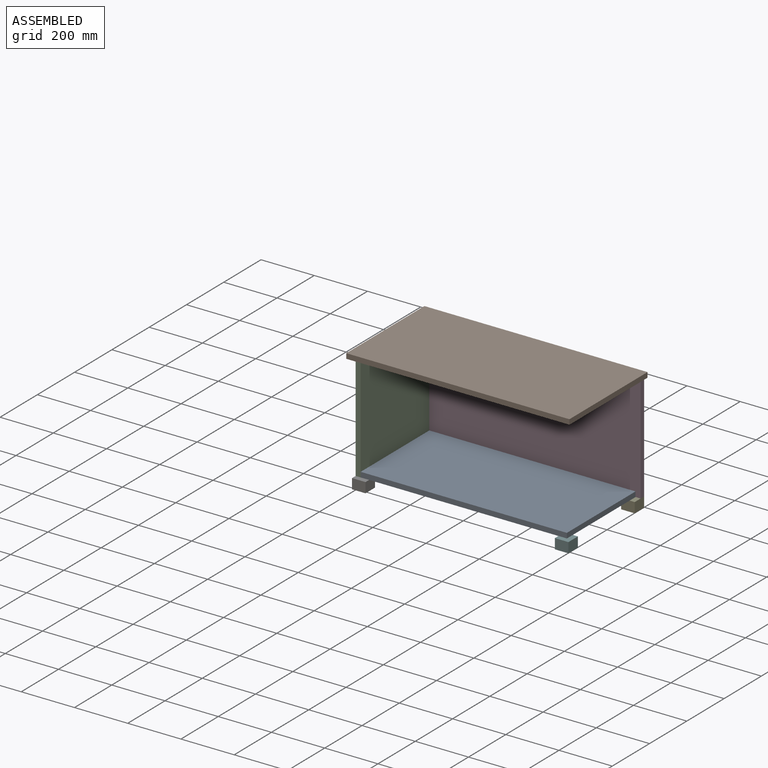
[diagram: assembled view]
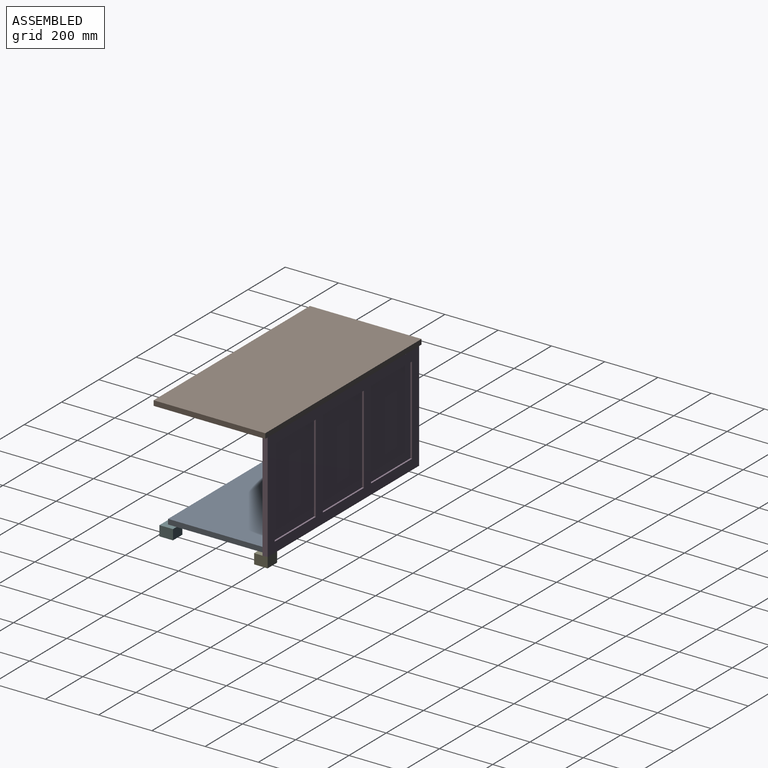
[diagram: assembled view, second angle]
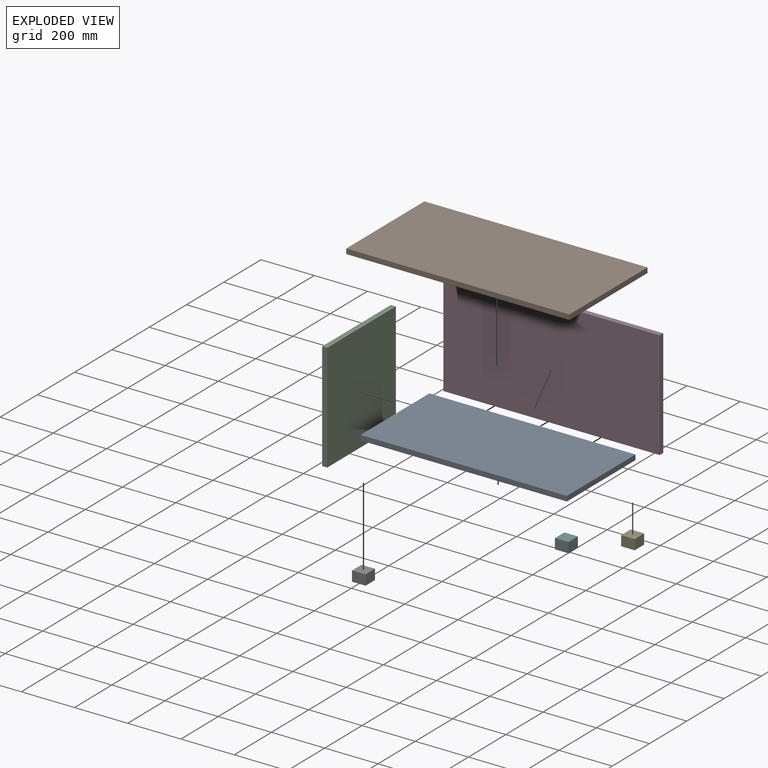
[diagram: exploded view]
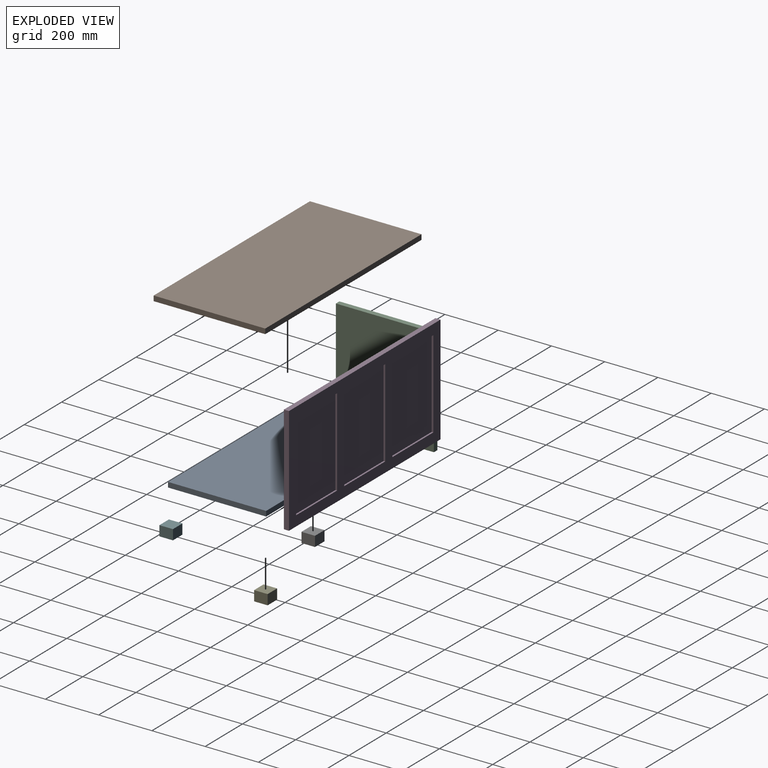
[diagram: exploded view, second angle]
FCSTD DOCUMENT  (FreeCAD 0.19R14555 (Git shallow))
Label: complete
License: All rights reserved
LicenseURL: http://en.wikipedia.org/wiki/All_rights_reserved
objects: Sketcher::SketchObject×9, PartDesign::Pad×9, PartDesign::Body×5, App::Link×5
note: 32 computed .brp shape members not serialized (recipe doc carries the construction recipe); baked Part::Feature solids carry a one-line shape summary decoded from their .brp

FEATURE [Sketcher::SketchObject] Sketch
  FullyConstrained = true
  MapMode = 5
  Support = -> [XY_Plane]
  sketch-geometry (8):
    g0: LineSegment StartX=-387.35 StartY=0 StartZ=0 EndX=387.35 EndY=-1e-15 EndZ=0
    g1: LineSegment StartX=387.35 StartY=-1e-15 StartZ=0 EndX=387.35 EndY=-368.3 EndZ=0
    g2: LineSegment StartX=387.35 StartY=-368.3 StartZ=0 EndX=-387.35 EndY=-368.3 EndZ=0
    g3: LineSegment StartX=-387.35 StartY=-368.3 StartZ=0 EndX=-387.35 EndY=0 EndZ=0
    g4: LineSegment StartX=-349.25 StartY=-38.1 StartZ=0 EndX=349.25 EndY=-38.1 EndZ=0
    g5: LineSegment StartX=349.25 StartY=-38.1 StartZ=0 EndX=349.25 EndY=-330.2 EndZ=0
    g6: LineSegment StartX=349.25 StartY=-330.2 StartZ=0 EndX=-349.25 EndY=-330.2 EndZ=0
    g7: LineSegment StartX=-349.25 StartY=-330.2 StartZ=0 EndX=-349.25 EndY=-38.1 EndZ=0
  constraints (23):
    c: Coincident(g0,g1)
    c: Coincident(g1,g2)
    c: Coincident(g2,g3)
    c: Coincident(g3,g0)
    c: Horizontal(g2)
    c: Vertical(g1)
    c: Vertical(g3)
    c: PointOnObject(g0,g-1)
    c: Symmetric(g0,g0,g-2)
    c: DistanceX(g0,g0) = 774.7
    c: DistanceY(g3,g3) = 368.3
    c: Coincident(g4,g5)
    c: Coincident(g5,g6)
    c: Coincident(g6,g7)
    c: Coincident(g7,g4)
    c: Horizontal(g4)
    c: Horizontal(g6)
    c: Vertical(g5)
    c: Vertical(g7)
    c: DistanceX(g4,g0) = 38.1
    c: DistanceY(g4,g0) = 38.1
    c: DistanceY(g1,g5) = 38.1
    c: DistanceX(g0,g4) = 38.1
FEATURE [PartDesign::Pad] Pad
  Direction = (1,1,1)
  Length = 19.05
  Length2 = 100.076
  Profile = -> Sketch
  Type = 0
FEATURE [Sketcher::SketchObject] Sketch001
  ExternalGeometry = -> [Pad]
  FullyConstrained = true
  MapMode = 5
  Placement = pos=(0,0,19.05) rot=(0,0,1;0rad)
  Support = -> [Pad]
  sketch-geometry (4):
    g0: LineSegment StartX=-349.25 StartY=-38.1 StartZ=0 EndX=349.25 EndY=-38.1 EndZ=0
    g1: LineSegment StartX=349.25 StartY=-38.1 StartZ=0 EndX=349.25 EndY=-330.2 EndZ=0
    g2: LineSegment StartX=349.25 StartY=-330.2 StartZ=0 EndX=-349.25 EndY=-330.2 EndZ=0
    g3: LineSegment StartX=-349.25 StartY=-330.2 StartZ=0 EndX=-349.25 EndY=-38.1 EndZ=0
  constraints (10):
    c: Coincident(g0,g1)
    c: Coincident(g1,g2)
    c: Coincident(g2,g3)
    c: Coincident(g3,g0)
    c: Horizontal(g0)
    c: Horizontal(g2)
    c: Vertical(g1)
    c: Vertical(g3)
    c: Coincident(g0,g-3)
    c: Coincident(g1,g-4)
FEATURE [PartDesign::Pad] Pad001
  BaseFeature = -> Pad
  Direction = (1,1,1)
  Length = 12.7
  Length2 = 100.076
  Profile = -> Sketch001
  Reversed = true
  Type = 0
FEATURE [PartDesign::Body] Body  label="bottom"
  Group = -> [Sketch,Pad,Sketch001,Pad001]
  Origin = -> Origin
  Tip = -> Pad001
FEATURE [Sketcher::SketchObject] Sketch002
  FullyConstrained = true
  MapMode = 5
  Placement = pos=(0,0,0) rot=(0.57735,0.57735,0.57735;2.0944rad)
  Support = -> [YZ_Plane001]
  sketch-geometry (8):
    g0: LineSegment StartX=-368.3 StartY=406.4 StartZ=0 EndX=0 EndY=406.4 EndZ=0
    g1: LineSegment StartX=0 StartY=406.4 StartZ=0 EndX=0 EndY=0 EndZ=0
    g2: LineSegment StartX=0 StartY=0 StartZ=0 EndX=-368.3 EndY=0 EndZ=0
    g3: LineSegment StartX=-368.3 StartY=0 StartZ=0 EndX=-368.3 EndY=406.4 EndZ=0
    g4: LineSegment StartX=-330.2 StartY=368.3 StartZ=0 EndX=-38.1 EndY=368.3 EndZ=0
    g5: LineSegment StartX=-38.1 StartY=368.3 StartZ=0 EndX=-38.1 EndY=38.1 EndZ=0
    g6: LineSegment StartX=-38.1 StartY=38.1 StartZ=0 EndX=-330.2 EndY=38.1 EndZ=0
    g7: LineSegment StartX=-330.2 StartY=38.1 StartZ=0 EndX=-330.2 EndY=368.3 EndZ=0
  constraints (23):
    c: Coincident(g0,g1)
    c: Coincident(g1,g2)
    c: Coincident(g2,g3)
    c: Coincident(g3,g0)
    c: Horizontal(g0)
    c: Horizontal(g2)
    c: Vertical(g1)
    c: Vertical(g3)
    c: Coincident(g1,g-1)
    c: DistanceX(g0,g0) = 368.3
    c: DistanceY(g1,g1) = 406.4
    c: Coincident(g4,g5)
    c: Coincident(g5,g6)
    c: Coincident(g6,g7)
    c: Coincident(g7,g4)
    c: Horizontal(g4)
    c: Horizontal(g6)
    c: Vertical(g5)
    c: Vertical(g7)
    c: DistanceX(g4,g0) = 38.1
    c: DistanceY(g1,g5) = 38.1
    c: DistanceX(g2,g6) = 38.1
    c: DistanceY(g4,g0) = 38.1
FEATURE [PartDesign::Pad] Pad002
  Direction = (1,1,1)
  Length = 19.05
  Length2 = 100.076
  Placement = pos=(0,0,0) rot=(0.57735,0.57735,0.57735;2.0944rad)
  Profile = -> Sketch002
  Type = 0
FEATURE [Sketcher::SketchObject] Sketch003
  ExternalGeometry = -> [Pad002]
  FullyConstrained = true
  MapMode = 5
  Placement = pos=(0,0,0) rot=(0.57735,0.57735,0.57735;2.0944rad)
  Support = -> [YZ_Plane001]
  sketch-geometry (4):
    g0: LineSegment StartX=-330.2 StartY=368.3 StartZ=0 EndX=-38.1 EndY=368.3 EndZ=0
    g1: LineSegment StartX=-38.1 StartY=368.3 StartZ=0 EndX=-38.1 EndY=38.1 EndZ=0
    g2: LineSegment StartX=-38.1 StartY=38.1 StartZ=0 EndX=-330.2 EndY=38.1 EndZ=0
    g3: LineSegment StartX=-330.2 StartY=38.1 StartZ=0 EndX=-330.2 EndY=368.3 EndZ=0
  constraints (10):
    c: Coincident(g0,g1)
    c: Coincident(g1,g2)
    c: Coincident(g2,g3)
    c: Coincident(g3,g0)
    c: Horizontal(g0)
    c: Horizontal(g2)
    c: Vertical(g1)
    c: Vertical(g3)
    c: Coincident(g0,g-3)
    c: Coincident(g1,g-4)
FEATURE [PartDesign::Pad] Pad003
  BaseFeature = -> Pad002
  Direction = (1,1,1)
  Length = 12.7
  Length2 = 100.076
  Placement = pos=(0,0,0) rot=(0.57735,0.57735,0.57735;2.0944rad)
  Profile = -> Sketch003
  Type = 0
FEATURE [PartDesign::Body] Body001  label="right"
  Group = -> [Sketch002,Pad002,Sketch003,Pad003]
  Origin = -> Origin001
  Placement = pos=(387.35,0,0) rot=(0,0,1;0rad)
  Tip = -> Pad003
FEATURE [App::Link] Link  label="left"
  LinkPlacement = pos=(-387.35,-368.3,0) rot=(0,0,1;3.14159rad)
  LinkedObject = -> Body001
  Placement = pos=(-387.35,-368.3,0) rot=(0,0,1;3.14159rad)
FEATURE [Sketcher::SketchObject] Sketch004
  FullyConstrained = true
  MapMode = 5
  Placement = pos=(0,0,0) rot=(1,0,0;1.5708rad)
  Support = -> [XZ_Plane002]
  sketch-geometry (16):
    g0: LineSegment StartX=-406.4 StartY=406.4 StartZ=0 EndX=406.4 EndY=406.4 EndZ=0
    g1: LineSegment StartX=406.4 StartY=406.4 StartZ=0 EndX=406.4 EndY=0 EndZ=0
    g2: LineSegment StartX=406.4 StartY=0 StartZ=0 EndX=-406.4 EndY=0 EndZ=0
    g3: LineSegment StartX=-406.4 StartY=0 StartZ=0 EndX=-406.4 EndY=406.4 EndZ=0
    g4: LineSegment StartX=-368.3 StartY=368.3 StartZ=0 EndX=-148.167 EndY=368.3 EndZ=0
    g5: LineSegment StartX=368.3 StartY=368.3 StartZ=0 EndX=368.3 EndY=38.1 EndZ=0
    g6: LineSegment StartX=368.3 StartY=38.1 StartZ=0 EndX=148.167 EndY=38.1 EndZ=0
    g7: LineSegment StartX=-368.3 StartY=38.1 StartZ=0 EndX=-368.3 EndY=368.3 EndZ=0
    g8: LineSegment StartX=148.167 StartY=368.3 StartZ=0 EndX=368.3 EndY=368.3 EndZ=0
    g9: LineSegment StartX=-148.167 StartY=38.1 StartZ=0 EndX=-368.3 EndY=38.1 EndZ=0
    g10: LineSegment StartX=-148.167 StartY=368.3 StartZ=0 EndX=-148.167 EndY=38.1 EndZ=0
    g11: LineSegment StartX=148.167 StartY=368.3 StartZ=0 EndX=148.167 EndY=38.1 EndZ=0
    g12: LineSegment StartX=-110.067 StartY=368.3 StartZ=0 EndX=110.067 EndY=368.3 EndZ=0
    g13: LineSegment StartX=110.067 StartY=368.3 StartZ=0 EndX=110.067 EndY=38.1 EndZ=0
    g14: LineSegment StartX=110.067 StartY=38.1 StartZ=0 EndX=-110.067 EndY=38.1 EndZ=0
    g15: LineSegment StartX=-110.067 StartY=38.1 StartZ=0 EndX=-110.067 EndY=368.3 EndZ=0
  constraints (45):
    c: Coincident(g0,g1)
    c: Coincident(g1,g2)
    c: Coincident(g2,g3)
    c: Coincident(g3,g0)
    c: Horizontal(g2)
    c: Vertical(g1)
    c: Vertical(g3)
    c: Symmetric(g0,g0,g-2)
    c: DistanceX(g0,g0) = 812.8
    c: PointOnObject(g-1,g2)
    c: DistanceY(g1,g1) = 406.4
    c: Coincident(g8,g5)
    c: Coincident(g5,g6)
    c: Coincident(g9,g7)
    c: Coincident(g7,g4)
    c: Horizontal(g4)
    c: Horizontal(g6)
    c: Vertical(g5)
    c: Vertical(g7)
    c: DistanceX(g8,g0) = 38.1
    c: DistanceY(g1,g5) = 38.1
    c: DistanceX(g2,g9) = 38.1
    c: DistanceY(g4,g0) = 38.1
    c: Tangent(g4,g8)
    c: Tangent(g6,g9)
    c: Vertical(g4,g9)
    c: Vertical(g8,g6)
    c: Coincident(g10,g4)
    c: Coincident(g10,g9)
    c: Coincident(g11,g8)
    c: Coincident(g11,g6)
    c: Coincident(g12,g13)
    c: Coincident(g13,g14)
    c: Coincident(g14,g15)
    c: Coincident(g15,g12)
    c: Horizontal(g12)
    c: Horizontal(g14)
    c: Vertical(g13)
    c: Vertical(g15)
    c: Equal(g4,g12)
    c: Equal(g12,g8)
    c: Horizontal(g8,g12)
    c: Horizontal(g13,g6)
    c: DistanceX(g4,g12) = 38.1
    c: DistanceX(g12,g8) = 38.1
FEATURE [PartDesign::Pad] Pad004
  Direction = (1,1,1)
  Length = 19.05
  Length2 = 100.076
  Placement = pos=(0,0,0) rot=(1,0,0;1.5708rad)
  Profile = -> Sketch004
  Type = 0
FEATURE [App::Link] Link001  label="back"
  LinkPlacement = pos=(0,0,0) rot=(0,0,1;3.14159rad)
  LinkedObject = -> Body002
  Placement = pos=(0,0,0) rot=(0,0,1;3.14159rad)
FEATURE [Sketcher::SketchObject] Sketch006
  FullyConstrained = true
  MapMode = 5
  Support = -> [XY_Plane003]
  sketch-geometry (8):
    g0: LineSegment StartX=-419.1 StartY=0 StartZ=0 EndX=419.1 EndY=0 EndZ=0
    g1: LineSegment StartX=419.1 StartY=0 StartZ=0 EndX=419.1 EndY=-419.1 EndZ=0
    g2: LineSegment StartX=419.1 StartY=-419.1 StartZ=0 EndX=-419.1 EndY=-419.1 EndZ=0
    g3: LineSegment StartX=-419.1 StartY=-419.1 StartZ=0 EndX=-419.1 EndY=0 EndZ=0
    g4: LineSegment StartX=-381 StartY=-38.1 StartZ=0 EndX=381 EndY=-38.1 EndZ=0
    g5: LineSegment StartX=381 StartY=-38.1 StartZ=0 EndX=381 EndY=-381 EndZ=0
    g6: LineSegment StartX=381 StartY=-381 StartZ=0 EndX=-381 EndY=-381 EndZ=0
    g7: LineSegment StartX=-381 StartY=-381 StartZ=0 EndX=-381 EndY=-38.1 EndZ=0
  constraints (23):
    c: Coincident(g0,g1)
    c: Coincident(g1,g2)
    c: Coincident(g2,g3)
    c: Coincident(g3,g0)
    c: Horizontal(g2)
    c: Vertical(g1)
    c: Vertical(g3)
    c: Symmetric(g0,g0,g-2)
    c: DistanceX(g0,g0) = 838.2
    c: DistanceY(g3,g3) = 419.1
    c: PointOnObject(g-1,g0)
    c: Coincident(g4,g5)
    c: Coincident(g5,g6)
    c: Coincident(g6,g7)
    c: Coincident(g7,g4)
    c: Horizontal(g4)
    c: Horizontal(g6)
    c: Vertical(g5)
    c: Vertical(g7)
    c: DistanceX(g4,g0) = 38.1
    c: DistanceY(g1,g5) = 38.1
    c: DistanceX(g2,g6) = 38.1
    c: DistanceY(g4,g0) = 38.1
FEATURE [PartDesign::Pad] Pad006
  Direction = (1,1,1)
  Length = 19.05
  Length2 = 100.076
  Profile = -> Sketch006
  Type = 0
FEATURE [Sketcher::SketchObject] Sketch007
  ExternalGeometry = -> [Pad006]
  FullyConstrained = true
  MapMode = 5
  Placement = pos=(0,0,19.05) rot=(0,0,1;0rad)
  Support = -> [Pad006]
  sketch-geometry (4):
    g0: LineSegment StartX=-381 StartY=-38.1 StartZ=0 EndX=381 EndY=-38.1 EndZ=0
    g1: LineSegment StartX=381 StartY=-38.1 StartZ=0 EndX=381 EndY=-381 EndZ=0
    g2: LineSegment StartX=381 StartY=-381 StartZ=0 EndX=-381 EndY=-381 EndZ=0
    g3: LineSegment StartX=-381 StartY=-381 StartZ=0 EndX=-381 EndY=-38.1 EndZ=0
  constraints (10):
    c: Coincident(g0,g1)
    c: Coincident(g1,g2)
    c: Coincident(g2,g3)
    c: Coincident(g3,g0)
    c: Horizontal(g0)
    c: Horizontal(g2)
    c: Vertical(g1)
    c: Vertical(g3)
    c: Coincident(g0,g-3)
    c: Coincident(g1,g-4)
FEATURE [PartDesign::Pad] Pad007
  BaseFeature = -> Pad006
  Direction = (1,1,1)
  Length = 12.7
  Length2 = 100.076
  Profile = -> Sketch007
  Reversed = true
  Type = 0
FEATURE [PartDesign::Body] Body003  label="top"
  Group = -> [Sketch006,Pad006,Sketch007,Pad007]
  Origin = -> Origin003
  Placement = pos=(0,19.05,406.4) rot=(0,0,1;0rad)
  Tip = -> Pad007
FEATURE [Sketcher::SketchObject] Sketch008
  ExternalGeometry = -> [Pad004]
  FullyConstrained = true
  MapMode = 5
  Placement = pos=(0,0,0) rot=(1,0,0;1.5708rad)
  Support = -> [XZ_Plane002]
  sketch-geometry (12):
    g0: LineSegment StartX=-368.3 StartY=368.3 StartZ=0 EndX=-148.167 EndY=368.3 EndZ=0
    g1: LineSegment StartX=-148.167 StartY=368.3 StartZ=0 EndX=-148.167 EndY=38.1 EndZ=0
    g2: LineSegment StartX=-148.167 StartY=38.1 StartZ=0 EndX=-368.3 EndY=38.1 EndZ=0
    g3: LineSegment StartX=-368.3 StartY=38.1 StartZ=0 EndX=-368.3 EndY=368.3 EndZ=0
    g4: LineSegment StartX=-110.067 StartY=368.3 StartZ=0 EndX=110.067 EndY=368.3 EndZ=0
    g5: LineSegment StartX=110.067 StartY=368.3 StartZ=0 EndX=110.067 EndY=38.1 EndZ=0
    g6: LineSegment StartX=110.067 StartY=38.1 StartZ=0 EndX=-110.067 EndY=38.1 EndZ=0
    g7: LineSegment StartX=-110.067 StartY=38.1 StartZ=0 EndX=-110.067 EndY=368.3 EndZ=0
    g8: LineSegment StartX=148.167 StartY=368.3 StartZ=0 EndX=368.3 EndY=368.3 EndZ=0
    g9: LineSegment StartX=368.3 StartY=368.3 StartZ=0 EndX=368.3 EndY=38.1 EndZ=0
    g10: LineSegment StartX=368.3 StartY=38.1 StartZ=0 EndX=148.167 EndY=38.1 EndZ=0
    g11: LineSegment StartX=148.167 StartY=38.1 StartZ=0 EndX=148.167 EndY=368.3 EndZ=0
  constraints (30):
    c: Coincident(g0,g1)
    c: Coincident(g1,g2)
    c: Coincident(g2,g3)
    c: Coincident(g3,g0)
    c: Horizontal(g0)
    c: Horizontal(g2)
    c: Vertical(g1)
    c: Vertical(g3)
    c: Coincident(g0,g-3)
    c: Coincident(g1,g-4)
    c: Coincident(g4,g5)
    c: Coincident(g5,g6)
    c: Coincident(g6,g7)
    c: Coincident(g7,g4)
    c: Horizontal(g4)
    c: Horizontal(g6)
    c: Vertical(g5)
    c: Vertical(g7)
    c: Coincident(g4,g-5)
    c: Coincident(g5,g-6)
    c: Coincident(g8,g9)
    c: Coincident(g9,g10)
    c: Coincident(g10,g11)
    c: Coincident(g11,g8)
    c: Horizontal(g8)
    c: Horizontal(g10)
    c: Vertical(g9)
    c: Vertical(g11)
    c: Coincident(g8,g-7)
    c: Coincident(g9,g-8)
FEATURE [PartDesign::Pad] Pad008
  BaseFeature = -> Pad004
  Direction = (1,1,1)
  Length = 12.7
  Length2 = 100.076
  Placement = pos=(0,0,0) rot=(1,0,0;1.5708rad)
  Profile = -> Sketch008
  Type = 0
FEATURE [PartDesign::Body] Body002  label="front"
  Group = -> [Sketch004,Pad004,Sketch008,Pad008]
  Origin = -> Origin002
  Placement = pos=(0,-368.3,0) rot=(0,0,1;0rad)
  Tip = -> Pad008
FEATURE [Sketcher::SketchObject] Sketch009
  FullyConstrained = true
  MapMode = 5
  Support = -> [XY_Plane004]
  sketch-geometry (4):
    g0: LineSegment StartX=-25.4 StartY=25.4 StartZ=0 EndX=25.4 EndY=25.4 EndZ=0
    g1: LineSegment StartX=25.4 StartY=25.4 StartZ=0 EndX=25.4 EndY=-25.4 EndZ=0
    g2: LineSegment StartX=25.4 StartY=-25.4 StartZ=0 EndX=-25.4 EndY=-25.4 EndZ=0
    g3: LineSegment StartX=-25.4 StartY=-25.4 StartZ=0 EndX=-25.4 EndY=25.4 EndZ=0
  constraints (10):
    c: Coincident(g0,g1)
    c: Coincident(g1,g2)
    c: Coincident(g2,g3)
    c: Coincident(g3,g0)
    c: Horizontal(g2)
    c: Vertical(g1)
    c: Symmetric(g0,g0,g-2)
    c: Symmetric(g0,g2,g-1)
    c: Equal(g3,g0)
    c: DistanceX(g0,g0) = 50.8
FEATURE [PartDesign::Pad] Pad009
  Direction = (1,1,1)
  Length = 38.1
  Length2 = 100.076
  Profile = -> Sketch009
  Type = 0
FEATURE [PartDesign::Body] Body004  label="foot"
  Group = -> [Sketch009,Pad009]
  Origin = -> Origin004
  Placement = pos=(-381,-6.35,-38.1) rot=(0,0,1;0rad)
  Tip = -> Pad009
FEATURE [App::Link] Link002  label="foot001"
  LinkPlacement = pos=(381,-6.35,-38.1) rot=(0,0,1;0rad)
  LinkedObject = -> Body004
  Placement = pos=(381,-6.35,-38.1) rot=(0,0,1;0rad)
FEATURE [App::Link] Link003  label="foot002"
  LinkPlacement = pos=(381,-361.95,-38.1) rot=(0,0,1;0rad)
  LinkedObject = -> Body004
  Placement = pos=(381,-361.95,-38.1) rot=(0,0,1;0rad)
FEATURE [App::Link] Link004  label="foot003"
  LinkPlacement = pos=(-381,-361.95,-38.1) rot=(0,0,1;0rad)
  LinkedObject = -> Body004
  Placement = pos=(-381,-361.95,-38.1) rot=(0,0,1;0rad)
